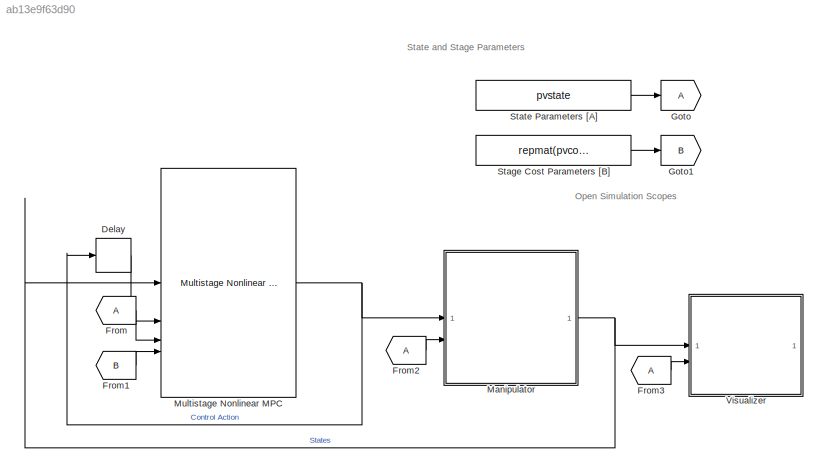
MODEL slx_ab13e9f63d90
KIND model
CONFIG AbsTol = auto
CONFIG EnableMultiTasking = off
CONFIG FixedStep = auto
CONFIG MaxStep = auto
CONFIG MinStep = auto
CONFIG RelTol = 1e-3
CONFIG SampleTimeConstraint = Unconstrained
CONFIG SolverName = VariableStepAuto
CONFIG StartTime = 0.0
CONFIG StopTime = 10.0
BLOCK [Delay] Delay
  DelayLength = 1
  InitialCondition = u0
  InputPortMap = u0
  NameLocation = top
BLOCK [From] From
BLOCK [From] From1
  GotoTag = B
BLOCK [From] From2
BLOCK [From] From3
BLOCK [Goto] Goto
  IconDisplay = Signal name
BLOCK [Goto] Goto1
  GotoTag = B
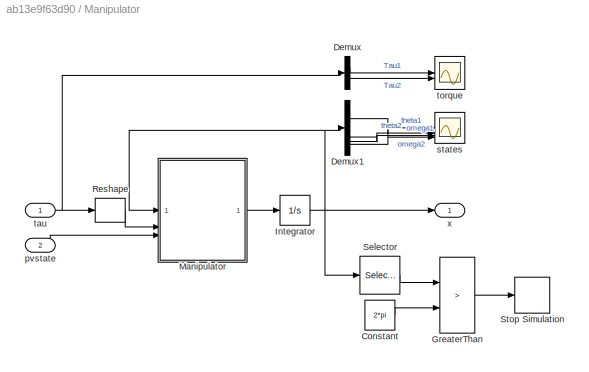
BLOCK [SubSystem] Manipulator
BLOCK [Constant] Manipulator/Constant
  Value = 2*pi
BLOCK [Demux] Manipulator/Demux
  Outputs = 2
BLOCK [Demux] Manipulator/Demux1
BLOCK [RelationalOperator] Manipulator/GreaterThan
  InputSameDT = off
  Operator = >
  OutDataTypeStr = boolean
  RndMeth = Simplest
BLOCK [Integrator] Manipulator/Integrator
  InitialCondition = x0
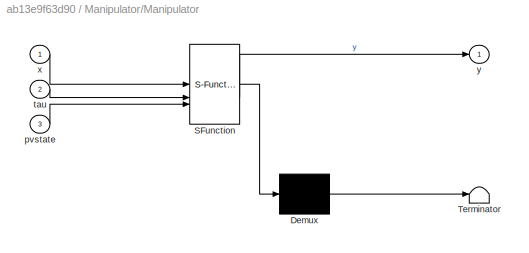
BLOCK [SubSystem] Manipulator/Manipulator
  ErrorFcn = Stateflow.Translate.translate
  PermitHierarchicalResolution = ExplicitOnly
  SFBlockType = MATLAB Function
  TreatAsAtomicUnit = on
BLOCK [Demux] Manipulator/Manipulator/ Demux 
  Outputs = 1
BLOCK [S-Function] Manipulator/Manipulator/ SFunction 
  EnableBusSupport = on
  FunctionName = sf_sfun
  PortCounts = [3 2]
  SFcnIsStateOwnerBlock = off
  SFunctionDeploymentMode = off
  Tag = Stateflow S-Function 2
BLOCK [Terminator] Manipulator/Manipulator/ Terminator 
BLOCK [Inport] Manipulator/Manipulator/pvstate
  Port = 3
BLOCK [Inport] Manipulator/Manipulator/tau
  Port = 2
BLOCK [Inport] Manipulator/Manipulator/x
BLOCK [Outport] Manipulator/Manipulator/y
BLOCK [Reshape] Manipulator/Reshape
  OutputDimensionality = Customize
  OutputDimensions = [2,1]
BLOCK [Selector] Manipulator/Selector
  IndexOptions = Index vector (dialog)
  Indices = 1
  InputPortWidth = 4
  OutputSizes = 1
BLOCK [Stop] Manipulator/Stop Simulation
BLOCK [Inport] Manipulator/pvstate
  Port = 2
BLOCK [Scope] Manipulator/states
  Floating = off
  NumInputPorts = 4
  ScopeSpecificationString = Simulink.scopes.TimeScopeBlockCfg('CurrentConfiguration', extmgr.ConfigurationSet(extmgr.Configuration('Core','General UI',true),extmgr.Configuration('Core','Source UI',true),extmgr.Configuration('Sources','WiredSimulink',true,'DataLoggingSaveFormat','StructureWithTime','DataLoggingDecimation','1','DataLoggingDecimateData',true,'DataLoggingVariableName','ScopeData1'),extmgr.Configuration('Visuals'...<+4006ch>
BLOCK [Inport] Manipulator/tau
BLOCK [Scope] Manipulator/torque
  Floating = off
  NumInputPorts = 2
  ScopeSpecificationString = Simulink.scopes.TimeScopeBlockCfg('CurrentConfiguration', extmgr.ConfigurationSet(extmgr.Configuration('Core','General UI',true),extmgr.Configuration('Core','Source UI',true),extmgr.Configuration('Sources','WiredSimulink',true),extmgr.Configuration('Visuals','Time Domain',true,'SerializedDisplays',{struct('MinYLimReal','-9.62214','MaxYLimReal','12.80146','YLabelReal','','MinYLimMag','0.00000','Max...<+2153ch>
BLOCK [Outport] Manipulator/x
BLOCK [Reference] Multistage Nonlinear MPC  REF=mpclib/Multistage Nonlinear MPC  (lib defined in mdl_ae329e0e0455)
  SourceBlock = mpclib/Multistage Nonlinear MPC
  SourceType = NonlinearMPCMultistage
BLOCK [Constant] Stage Cost Parameters [B]
  Value = repmat(pvcost, p+1, 1)
  VectorParams1D = off
BLOCK [Constant] State Parameters [A]
  Value = pvstate
  VectorParams1D = off
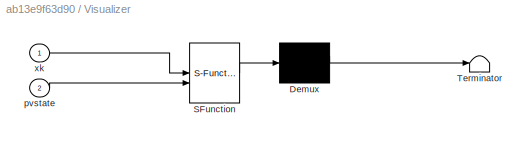
BLOCK [SubSystem] Visualizer
  ErrorFcn = Stateflow.Translate.translate
  PermitHierarchicalResolution = ExplicitOnly
  SFBlockType = MATLAB Function
  TreatAsAtomicUnit = on
BLOCK [Demux] Visualizer/ Demux 
  Outputs = 1
BLOCK [S-Function] Visualizer/ SFunction 
  EnableBusSupport = on
  FunctionName = sf_sfun
  Parameters = xf
  PortCounts = [2 1]
  SFcnIsStateOwnerBlock = off
  SFunctionDeploymentMode = off
  Tag = Stateflow S-Function 1
BLOCK [Terminator] Visualizer/ Terminator 
BLOCK [Inport] Visualizer/pvstate
  Port = 2
BLOCK [Inport] Visualizer/xk
ANNOTATION (root): Open Simulation Scopes
ANNOTATION (root): State and Stage Parameters
LINE Delay:1 -> Multistage Nonlinear MPC:2
LINE From1:1 -> Multistage Nonlinear MPC:4
LINE From2:1 -> Manipulator:2
LINE From3:1 -> Visualizer:2
LINE From:1 -> Multistage Nonlinear MPC:3
LINE Manipulator/Constant:1 -> Manipulator/GreaterThan:2
LINE Manipulator/Demux1:1 -> Manipulator/states:1
LINE Manipulator/Demux1:2 -> Manipulator/states:2
LINE Manipulator/Demux1:3 -> Manipulator/states:3
LINE Manipulator/Demux1:4 -> Manipulator/states:4
LINE Manipulator/Demux:1 -> Manipulator/torque:1
LINE Manipulator/Demux:2 -> Manipulator/torque:2
LINE Manipulator/GreaterThan:1 -> Manipulator/Stop Simulation:1
NET Manipulator/Integrator:1 -> Manipulator/Demux1:1, Manipulator/Manipulator:1, Manipulator/Selector:1, Manipulator/x:1
LINE Manipulator/Manipulator:1 -> Manipulator/Integrator:1
LINE Manipulator/Reshape:1 -> Manipulator/Manipulator:2
LINE Manipulator/Selector:1 -> Manipulator/GreaterThan:1
LINE Manipulator/pvstate:1 -> Manipulator/Manipulator:3
NET Manipulator/tau:1 -> Manipulator/Demux:1, Manipulator/Reshape:1
NET Manipulator:1 -> Multistage Nonlinear MPC:1, Visualizer:1
NET Multistage Nonlinear MPC:1 -> Delay:1, Manipulator:1
LINE Stage Cost Parameters [B]:1 -> Goto1:1
LINE State Parameters [A]:1 -> Goto:1
note: NET lines group one-source signal fan-out (src -> all destinations, sorted); 1:1 wires keep LINE
CHART Manipulator/Manipulator states=1 transitions=1
  STATE_LABEL 'eML_blk_kernel()'
  STATE_LABEL 'SCRIPT:\nfunction y = fcn(x, tau, pvstate)\ny = twolinkStateFcn(x, tau, pvstate);\n'
CHART Visualizer states=1 transitions=1
  STATE_LABEL 'eML_blk_kernel()'
  STATE_LABEL "SCRIPT:\nfunction fcn(xk, xf, pvstate)\n% This function launches the Robot Environment that animates a two-link\n% robot during Simulink simulation. It takes the current state (xk),\n% desired state (xf), and physical parameters for the robot (pvstate) as\n% inputs.\n\n% Declare PlotTwoLinkRobot.simulinkPlot function as an extrinsic function.\ncoder.extrinsic('helperRobotEnvironment.simulinkPlot');\n\n% Upd...<+76ch>"
CHART  states=0 transitions=0
CHART  states=0 transitions=0
